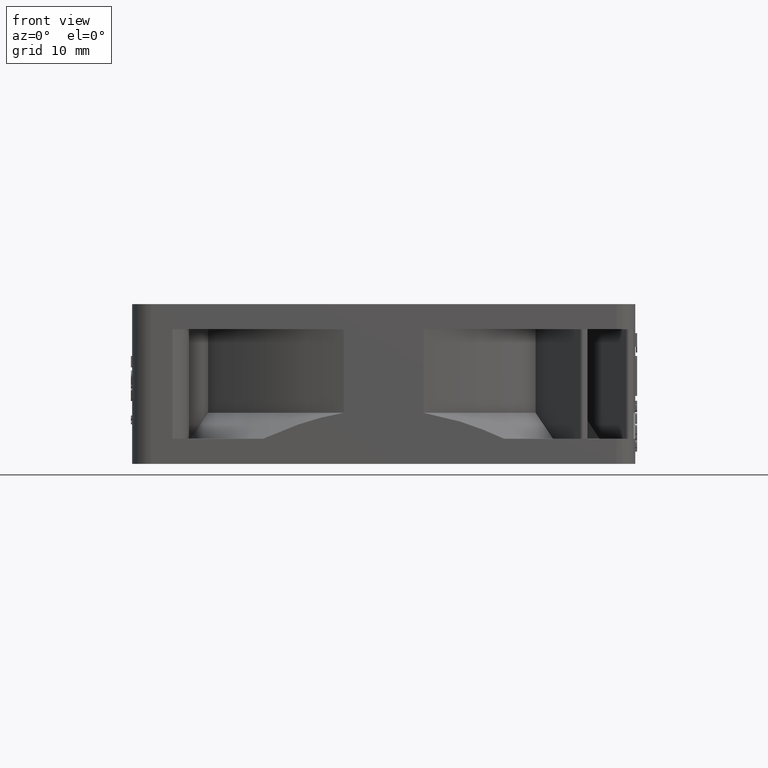
[diagram: clean part render]
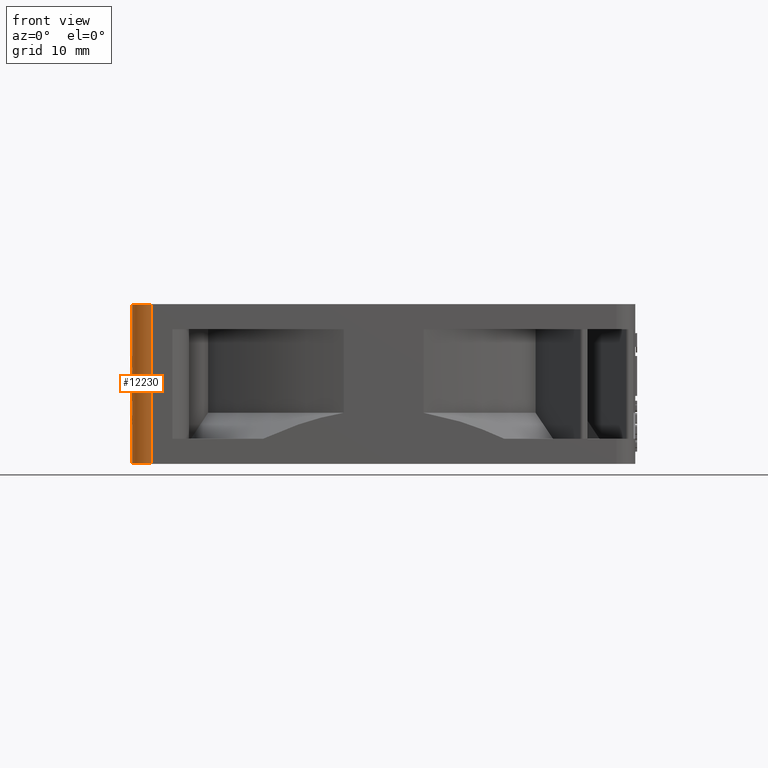
[diagram: same view with one face highlighted and labeled with its STEP entity id]
A machine part, front view. The second image highlights one B-rep face of the part: STEP entity #12230.
In plain terms, the highlighted cylindrical surface (edge-blend (fillet) strip) has radius 3 mm, axis along (0, 0, 1).
Its self-contained STEP definition (entity closure, byte-faithful):
#1055 = LINE ( 'NONE', #23860, #1956 ) ;
#1716 = ORIENTED_EDGE ( 'NONE', *, *, #17209, .F. ) ;
#1956 = VECTOR ( 'NONE', #34918, 1000.000000000000000 ) ;
#2495 = VERTEX_POINT ( 'NONE', #34653 ) ;
#3631 = CARTESIAN_POINT ( 'NONE',  ( -40.00000000000000000, -36.99999999999999300, 0.0000000000000000000 ) ) ;
#4323 = DIRECTION ( 'NONE',  ( 0.0000000000000000000, 0.0000000000000000000, 1.000000000000000000 ) ) ;
#4582 = CARTESIAN_POINT ( 'NONE',  ( -37.00000000000000000, -36.99999999999999300, 0.0000000000000000000 ) ) ;
#7625 = CARTESIAN_POINT ( 'NONE',  ( -37.00000000000000000, -39.99999999999999300, -25.39999999999999900 ) ) ;
#7881 = CIRCLE ( 'NONE', #32582, 3.000000000000002700 ) ;
#9045 = CARTESIAN_POINT ( 'NONE',  ( -37.00000000000000000, -39.99999999999999300, 0.0000000000000000000 ) ) ;
#11656 = CYLINDRICAL_SURFACE ( 'NONE', #30722, 3.000000000000002700 ) ;
#12230 = ADVANCED_FACE ( 'NONE', ( #20959 ), #11656, .T. ) ;
#13941 = CARTESIAN_POINT ( 'NONE',  ( -37.00000000000000000, -39.99999999999999300, -27.58708558022936300 ) ) ;
#14417 = DIRECTION ( 'NONE',  ( -0.0000000000000000000, -0.0000000000000000000, -1.000000000000000000 ) ) ;
#15898 = DIRECTION ( 'NONE',  ( 0.0000000000000000000, 0.0000000000000000000, 1.000000000000000000 ) ) ;
#16517 = AXIS2_PLACEMENT_3D ( 'NONE', #28700, #14417, #34188 ) ;
#17209 = EDGE_CURVE ( 'NONE', #26515, #25064, #7881, .T. ) ;
#18741 = EDGE_CURVE ( 'NONE', #25064, #24457, #29612, .T. ) ;
#20959 = FACE_OUTER_BOUND ( 'NONE', #22179, .T. ) ;
#21981 = DIRECTION ( 'NONE',  ( 1.000000000000000000, 0.0000000000000000000, 0.0000000000000000000 ) ) ;
#22179 = EDGE_LOOP ( 'NONE', ( #22861, #27381, #1716, #26889 ) ) ;
#22861 = ORIENTED_EDGE ( 'NONE', *, *, #23778, .F. ) ;
#23778 = EDGE_CURVE ( 'NONE', #24457, #2495, #34292, .T. ) ;
#23860 = CARTESIAN_POINT ( 'NONE',  ( -40.00000000000000000, -36.99999999999999300, -27.58708558022936300 ) ) ;
#24457 = VERTEX_POINT ( 'NONE', #7625 ) ;
#25064 = VERTEX_POINT ( 'NONE', #9045 ) ;
#25362 = DIRECTION ( 'NONE',  ( -0.0000000000000000000, -0.0000000000000000000, -1.000000000000000000 ) ) ;
#26515 = VERTEX_POINT ( 'NONE', #3631 ) ;
#26889 = ORIENTED_EDGE ( 'NONE', *, *, #31722, .F. ) ;
#27381 = ORIENTED_EDGE ( 'NONE', *, *, #18741, .F. ) ;
#28700 = CARTESIAN_POINT ( 'NONE',  ( -37.00000000000000000, -36.99999999999999300, -25.39999999999999900 ) ) ;
#28716 = VECTOR ( 'NONE', #25362, 1000.000000000000000 ) ;
#29612 = LINE ( 'NONE', #13941, #28716 ) ;
#29894 = DIRECTION ( 'NONE',  ( 1.000000000000000000, 0.0000000000000000000, 0.0000000000000000000 ) ) ;
#30722 = AXIS2_PLACEMENT_3D ( 'NONE', #32643, #4323, #29894 ) ;
#31722 = EDGE_CURVE ( 'NONE', #2495, #26515, #1055, .T. ) ;
#32582 = AXIS2_PLACEMENT_3D ( 'NONE', #4582, #15898, #21981 ) ;
#32643 = CARTESIAN_POINT ( 'NONE',  ( -37.00000000000000000, -36.99999999999999300, -27.58708558022936300 ) ) ;
#34188 = DIRECTION ( 'NONE',  ( 1.000000000000000000, 0.0000000000000000000, 0.0000000000000000000 ) ) ;
#34292 = CIRCLE ( 'NONE', #16517, 3.000000000000002700 ) ;
#34653 = CARTESIAN_POINT ( 'NONE',  ( -40.00000000000000000, -36.99999999999999300, -25.39999999999999900 ) ) ;
#34918 = DIRECTION ( 'NONE',  ( 0.0000000000000000000, 0.0000000000000000000, 1.000000000000000000 ) ) ;